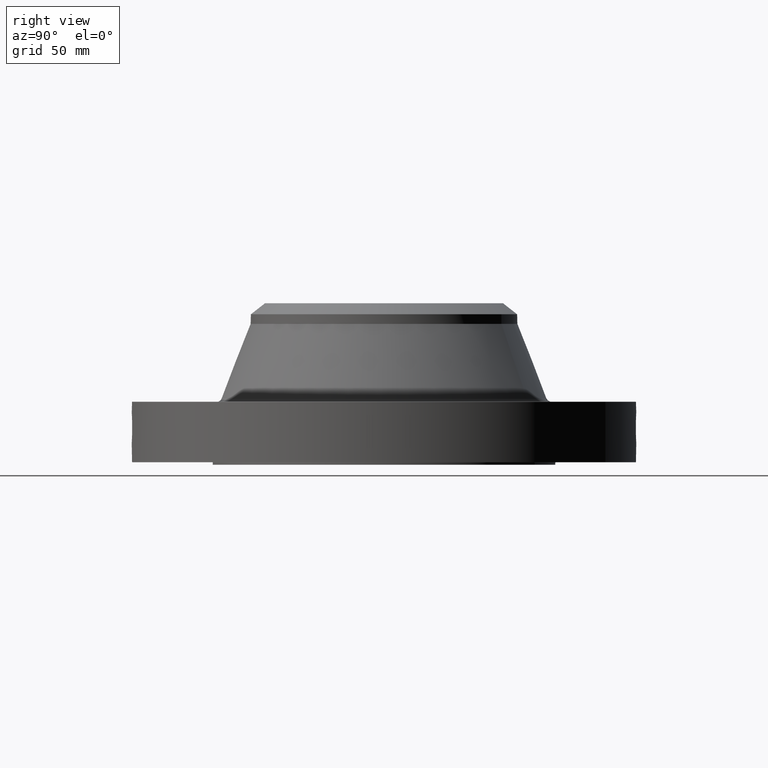
[diagram: clean part render]
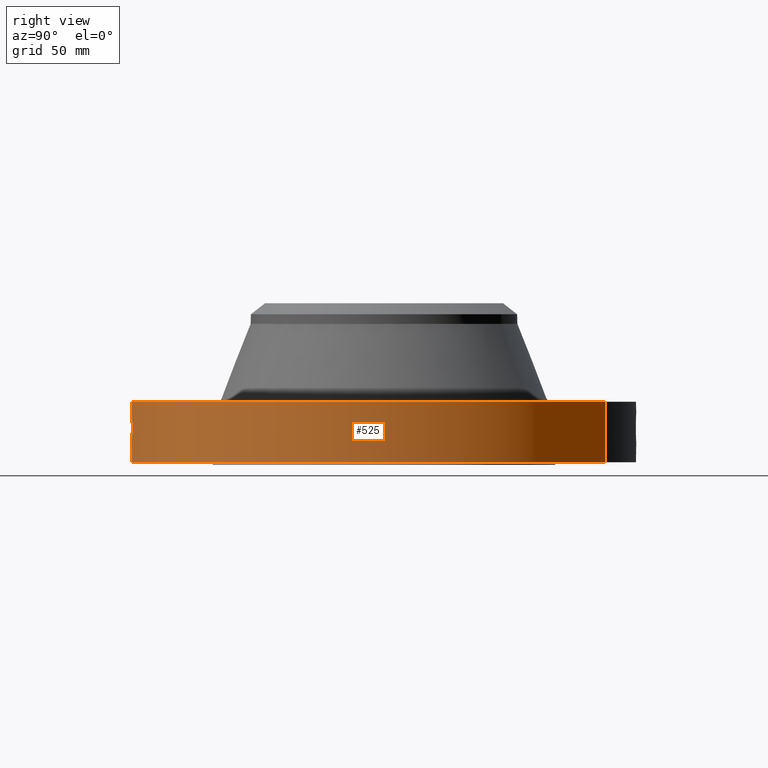
[diagram: same view with one face highlighted and labeled with its STEP entity id]
A machine part, right view. The second image highlights one B-rep face of the part: STEP entity #525.
In plain terms, the highlighted cylindrical surface (partial cylindrical patch) has radius 158.75 mm, axis along (0, 0, -1).
Its self-contained STEP definition (entity closure, byte-faithful):
#38=AXIS2_PLACEMENT_3D('Cylinder Axis2P3D',#35,#36,#37) ;
#168=AXIS2_PLACEMENT_3D('Circle Axis2P3D',#166,#167,$) ;
#430=AXIS2_PLACEMENT_3D('Circle Axis2P3D',#428,#429,$) ;
#35=CARTESIAN_POINT('Axis2P3D Location',(0.,0.,2.00000000001)) ;
#44=CARTESIAN_POINT('Vertex',(-2.99640961629,-5.48489101184,0.0600000000002)) ;
#46=CARTESIAN_POINT('Vertex',(2.99640961629,5.48489101184,0.0600000000002)) ;
#49=CARTESIAN_POINT('Line Origine',(-2.99640961629,-5.48489101184,0.810000000003)) ;
#53=CARTESIAN_POINT('Vertex',(-2.99640961629,-5.48489101184,1.56000000001)) ;
#60=CARTESIAN_POINT('Vertex',(2.99640961629,5.48489101184,1.56000000001)) ;
#63=CARTESIAN_POINT('Line Origine',(2.99640961629,5.48489101184,0.810000000003)) ;
#166=CARTESIAN_POINT('Axis2P3D Location',(0.,0.,0.0600000000002)) ;
#428=CARTESIAN_POINT('Axis2P3D Location',(0.,0.,1.56000000001)) ;
#440=CARTESIAN_POINT('Control Point',(0.0614635555359,-6.24969777122,1.28873453045)) ;
#441=CARTESIAN_POINT('Control Point',(0.0414206127856,-6.24989488644,1.29227337667)) ;
#442=CARTESIAN_POINT('Control Point',(0.0210705478793,-6.24999762516,1.29407720197)) ;
#443=CARTESIAN_POINT('Control Point',(0.000716625015329,-6.24999995894,1.29411849791)) ;
#444=CARTESIAN_POINT('Vertex',(0.0614452565132,-6.24969821853,1.28873805862)) ;
#446=CARTESIAN_POINT('Vertex',(0.000716453233956,-6.24999995896,1.29411850827)) ;
#450=CARTESIAN_POINT('Control Point',(0.0614451427414,-6.24969795228,1.28873745346)) ;
#451=CARTESIAN_POINT('Control Point',(0.09960172591,-6.24932280828,1.28347528152)) ;
#452=CARTESIAN_POINT('Control Point',(0.136898966588,-6.24859400634,1.27129793698)) ;
#453=CARTESIAN_POINT('Control Point',(0.171067775012,-6.2476584267,1.25316971548)) ;
#454=CARTESIAN_POINT('Vertex',(0.171067775012,-6.2476584267,1.25316971548)) ;
#458=CARTESIAN_POINT('Control Point',(0.0296245997141,-6.24992979028,0.531087376398)) ;
#459=CARTESIAN_POINT('Control Point',(0.0850675771189,-6.24966699116,0.538171888174)) ;
#460=CARTESIAN_POINT('Control Point',(0.138902356156,-6.24879700942,0.555715194416)) ;
#461=CARTESIAN_POINT('Control Point',(0.188307485786,-6.24740321224,0.583150575732)) ;
#462=CARTESIAN_POINT('Control Point',(0.276449768278,-6.24415683952,0.655463594738)) ;
#463=CARTESIAN_POINT('Control Point',(0.333310167272,-6.24118110124,0.752323970076)) ;
#464=CARTESIAN_POINT('Control Point',(0.353079942559,-6.24002779597,0.806112150906)) ;
#465=CARTESIAN_POINT('Control Point',(0.36914641559,-6.23909137311,0.894601683966)) ;
#466=CARTESIAN_POINT('Control Point',(0.36094588903,-6.23956932855,0.982529605477)) ;
#467=CARTESIAN_POINT('Control Point',(0.354582046471,-6.23994118245,1.01463252785)) ;
#468=CARTESIAN_POINT('Control Point',(0.330408142257,-6.24131002118,1.09289300418)) ;
#469=CARTESIAN_POINT('Control Point',(0.286455175115,-6.24352531942,1.16242269856)) ;
#470=CARTESIAN_POINT('Control Point',(0.253273594792,-6.24503488647,1.19958792981)) ;
#471=CARTESIAN_POINT('Control Point',(0.214209145421,-6.24647716842,1.23028111039)) ;
#472=CARTESIAN_POINT('Control Point',(0.171067775012,-6.2476584267,1.25316971548)) ;
#473=CARTESIAN_POINT('Vertex',(0.0296245997141,-6.24992979028,0.531087376398)) ;
#477=CARTESIAN_POINT('Control Point',(0.0296245997141,-6.24992979028,0.531087376398)) ;
#478=CARTESIAN_POINT('Control Point',(0.0197431947632,-6.24997662803,0.530860276062)) ;
#479=CARTESIAN_POINT('Control Point',(0.00985871018469,-6.25000000433,0.53095616725)) ;
#480=CARTESIAN_POINT('Control Point',(-2.72878354167E-006,-6.25000000002,0.531374667805)) ;
#481=CARTESIAN_POINT('Vertex',(-2.72878353848E-006,-6.25000000002,0.531374667805)) ;
#485=CARTESIAN_POINT('Control Point',(-0.193907788677,-6.24699125738,0.58506310233)) ;
#486=CARTESIAN_POINT('Control Point',(-0.134702840649,-6.24882899015,0.552547301426)) ;
#487=CARTESIAN_POINT('Control Point',(-0.0677968512983,-6.24999997043,0.534251724085)) ;
#488=CARTESIAN_POINT('Control Point',(-2.72878354168E-006,-6.25000000002,0.531374667805)) ;
#489=CARTESIAN_POINT('Vertex',(-0.193907788677,-6.24699125738,0.58506310233)) ;
#493=CARTESIAN_POINT('Control Point',(-0.193907788677,-6.24699125738,0.58506310233)) ;
#494=CARTESIAN_POINT('Control Point',(-0.22335931173,-6.24607707654,0.60123809844)) ;
#495=CARTESIAN_POINT('Control Point',(-0.251216906989,-6.2450386423,0.620307113172)) ;
#496=CARTESIAN_POINT('Control Point',(-0.277075776193,-6.24392572389,0.642131280029)) ;
#497=CARTESIAN_POINT('Control Point',(-0.344938171977,-6.24068147765,0.712694025262)) ;
#498=CARTESIAN_POINT('Control Point',(-0.389128244214,-6.23793966199,0.801690052005)) ;
#499=CARTESIAN_POINT('Control Point',(-0.405171685344,-6.23683264622,0.865656484667)) ;
#500=CARTESIAN_POINT('Control Point',(-0.407320015385,-6.23674970346,0.979563780488)) ;
#501=CARTESIAN_POINT('Control Point',(-0.368187360943,-6.23918287819,1.08414176801)) ;
#502=CARTESIAN_POINT('Control Point',(-0.344342799497,-6.24059961542,1.12551354922)) ;
#503=CARTESIAN_POINT('Control Point',(-0.274833289359,-6.244271632,1.21150785035)) ;
#504=CARTESIAN_POINT('Control Point',(-0.180523298962,-6.24777195259,1.26763439892)) ;
#505=CARTESIAN_POINT('Control Point',(-0.12138771032,-6.24927433195,1.28831333588)) ;
#506=CARTESIAN_POINT('Control Point',(-0.0602306911776,-6.25000024927,1.29710706111)) ;
#507=CARTESIAN_POINT('Control Point',(2.5857935528E-005,-6.24999999997,1.29415298435)) ;
#508=CARTESIAN_POINT('Vertex',(2.58579355259E-005,-6.24999999997,1.29415298435)) ;
#512=CARTESIAN_POINT('Control Point',(0.000716453223094,-6.24999995896,1.29411850825)) ;
#513=CARTESIAN_POINT('Control Point',(0.000371179202307,-6.24999999854,1.29413605498)) ;
#514=CARTESIAN_POINT('Control Point',(2.58579421779E-005,-6.24999999997,1.29415298434)) ;
#36=DIRECTION('Axis2P3D Direction',(0.,0.,-0.0393700787402)) ;
#37=DIRECTION('Axis2P3D XDirection',(0.0188750212049,0.0345504945626,0.)) ;
#50=DIRECTION('Vector Direction',(0.,0.,-0.0393700787402)) ;
#64=DIRECTION('Vector Direction',(0.,0.,-0.0393700787402)) ;
#167=DIRECTION('Axis2P3D Direction',(0.,0.,-0.0393700787402)) ;
#429=DIRECTION('Axis2P3D Direction',(0.,0.,-0.0393700787402)) ;
#51=VECTOR('Line Direction',#50,0.0393700787402) ;
#65=VECTOR('Line Direction',#64,0.0393700787402) ;
#434=ORIENTED_EDGE('',*,*,#170,.F.) ;
#435=ORIENTED_EDGE('',*,*,#67,.T.) ;
#436=ORIENTED_EDGE('',*,*,#432,.T.) ;
#437=ORIENTED_EDGE('',*,*,#55,.F.) ;
#517=ORIENTED_EDGE('',*,*,#448,.F.) ;
#518=ORIENTED_EDGE('',*,*,#456,.T.) ;
#519=ORIENTED_EDGE('',*,*,#475,.F.) ;
#520=ORIENTED_EDGE('',*,*,#483,.T.) ;
#521=ORIENTED_EDGE('',*,*,#491,.F.) ;
#522=ORIENTED_EDGE('',*,*,#510,.T.) ;
#523=ORIENTED_EDGE('',*,*,#515,.F.) ;
#524=FACE_BOUND('',#516,.T.) ;
#525=ADVANCED_FACE('PartBody',(#438,#524),#39,.T.) ;
#439=B_SPLINE_CURVE_WITH_KNOTS('',3,(#440,#441,#442,#443),.UNSPECIFIED.,.F.,.U.,(4,4),(4.26354528369,6.52162972016),.UNSPECIFIED.) ;
#449=B_SPLINE_CURVE_WITH_KNOTS('',3,(#450,#451,#452,#453),.UNSPECIFIED.,.F.,.U.,(4,4),(0.,4.32783988502),.UNSPECIFIED.) ;
#457=B_SPLINE_CURVE_WITH_KNOTS('',5,(#458,#459,#460,#461,#462,#463,#464,#465,#466,#467,#468,#469,#470,#471,#472),.UNSPECIFIED.,.F.,.U.,(6,3,3,3,6),(0.,9.71432465099,19.9376130089,25.9632427367,35.0704253013),.UNSPECIFIED.) ;
#476=B_SPLINE_CURVE_WITH_KNOTS('',3,(#477,#478,#479,#480),.UNSPECIFIED.,.F.,.U.,(4,4),(0.,1.03063568957),.UNSPECIFIED.) ;
#484=B_SPLINE_CURVE_WITH_KNOTS('',3,(#485,#486,#487,#488),.UNSPECIFIED.,.F.,.U.,(4,4),(0.,7.08527859485),.UNSPECIFIED.) ;
#492=B_SPLINE_CURVE_WITH_KNOTS('',5,(#493,#494,#495,#496,#497,#498,#499,#500,#501,#502,#503,#504,#505,#506,#507),.UNSPECIFIED.,.F.,.U.,(6,3,3,3,6),(0.,5.87429063398,17.0154698045,25.376208716,36.6394061705),.UNSPECIFIED.) ;
#511=B_SPLINE_CURVE_WITH_KNOTS('',2,(#512,#513,#514),.UNSPECIFIED.,.F.,.U.,(3,3),(1.07160087024,1.09741995095),.UNSPECIFIED.) ;
#169=CIRCLE('generated circle',#168,6.25000000003) ;
#431=CIRCLE('generated circle',#430,6.25000000003) ;
#39=CYLINDRICAL_SURFACE('generated cylinder',#38,6.25000000003) ;
#55=EDGE_CURVE('',#45,#54,#52,.F.) ;
#67=EDGE_CURVE('',#47,#61,#66,.F.) ;
#170=EDGE_CURVE('',#47,#45,#169,.T.) ;
#432=EDGE_CURVE('',#61,#54,#431,.T.) ;
#448=EDGE_CURVE('',#445,#447,#439,.T.) ;
#456=EDGE_CURVE('',#445,#455,#449,.T.) ;
#475=EDGE_CURVE('',#474,#455,#457,.T.) ;
#483=EDGE_CURVE('',#474,#482,#476,.T.) ;
#491=EDGE_CURVE('',#490,#482,#484,.T.) ;
#510=EDGE_CURVE('',#490,#509,#492,.T.) ;
#515=EDGE_CURVE('',#447,#509,#511,.T.) ;
#433=EDGE_LOOP('',(#434,#435,#436,#437)) ;
#516=EDGE_LOOP('',(#517,#518,#519,#520,#521,#522,#523)) ;
#438=FACE_OUTER_BOUND('',#433,.T.) ;
#52=LINE('Line',#49,#51) ;
#66=LINE('Line',#63,#65) ;
#45=VERTEX_POINT('',#44) ;
#47=VERTEX_POINT('',#46) ;
#54=VERTEX_POINT('',#53) ;
#61=VERTEX_POINT('',#60) ;
#445=VERTEX_POINT('',#444) ;
#447=VERTEX_POINT('',#446) ;
#455=VERTEX_POINT('',#454) ;
#474=VERTEX_POINT('',#473) ;
#482=VERTEX_POINT('',#481) ;
#490=VERTEX_POINT('',#489) ;
#509=VERTEX_POINT('',#508) ;